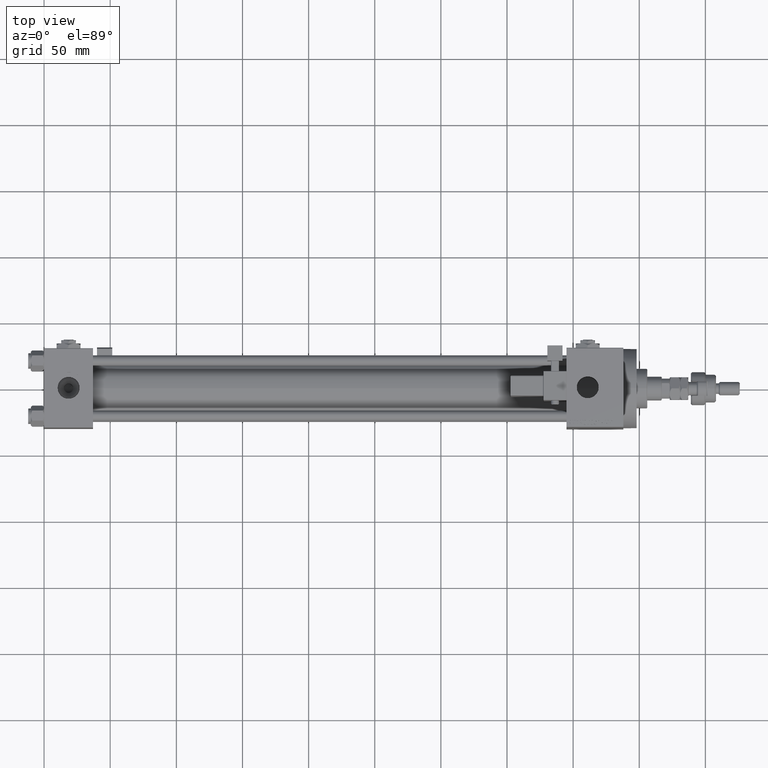
[diagram: clean part render]
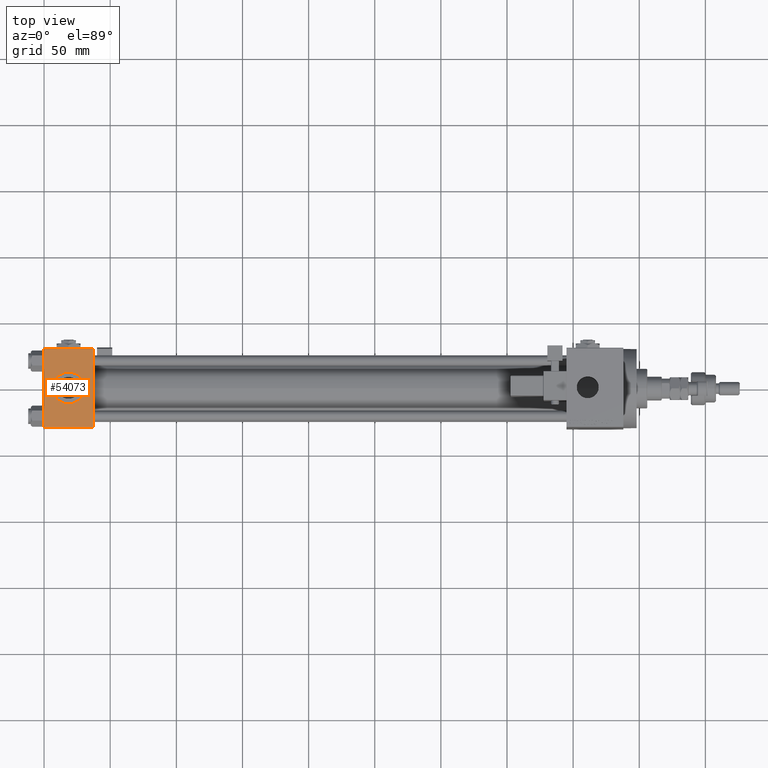
[diagram: same view with one face highlighted and labeled with its STEP entity id]
A machine part, top view. The second image highlights one B-rep face of the part: STEP entity #54073.
In plain terms, the highlighted planar face has unit normal (0, 0, -1).
Its self-contained STEP definition (entity closure, byte-faithful):
#1332 = DIRECTION ( 'NONE',  ( -1.000000000000000000, 0.000000000000000000, 0.000000000000000000 ) ) ;
#2607 = VERTEX_POINT ( 'NONE', #49533 ) ;
#3790 = DIRECTION ( 'NONE',  ( 1.000000000000000000, 0.000000000000000000, 0.000000000000000000 ) ) ;
#4729 = LINE ( 'NONE', #29997, #20088 ) ;
#4854 = ORIENTED_EDGE ( 'NONE', *, *, #6447, .T. ) ;
#6447 = EDGE_CURVE ( 'NONE', #23785, #51501, #8193, .T. ) ;
#7482 = AXIS2_PLACEMENT_3D ( 'NONE', #31144, #10029, #22626 ) ;
#7776 = EDGE_CURVE ( 'NONE', #2607, #23785, #12535, .T. ) ;
#8193 = LINE ( 'NONE', #32082, #16782 ) ;
#8410 = CARTESIAN_POINT ( 'NONE',  ( 37.00000000000000000, 29.49999999999999289, 30.00000000000000000 ) ) ;
#10029 = DIRECTION ( 'NONE',  ( 0.000000000000000000, 0.000000000000000000, 1.000000000000000000 ) ) ;
#10156 = ORIENTED_EDGE ( 'NONE', *, *, #33659, .T. ) ;
#10598 = EDGE_LOOP ( 'NONE', ( #52431, #11692 ) ) ;
#10994 = DIRECTION ( 'NONE',  ( 1.000000000000000000, 0.000000000000000000, 0.000000000000000000 ) ) ;
#11692 = ORIENTED_EDGE ( 'NONE', *, *, #48853, .F. ) ;
#12535 = LINE ( 'NONE', #13328, #41474 ) ;
#13328 = CARTESIAN_POINT ( 'NONE',  ( 0.000000000000000000, 29.99999999999999289, 30.00000000000000000 ) ) ;
#13783 = DIRECTION ( 'NONE',  ( 0.000000000000000000, -1.000000000000000000, -1.156482317317871725E-16 ) ) ;
#16782 = VECTOR ( 'NONE', #3790, 1000.000000000000000 ) ;
#17420 = VECTOR ( 'NONE', #1332, 1000.000000000000000 ) ;
#18230 = EDGE_LOOP ( 'NONE', ( #29566, #4854, #24355, #10156 ) ) ;
#18719 = VERTEX_POINT ( 'NONE', #29630 ) ;
#19620 = CIRCLE ( 'NONE', #7482, 12.00000000000000000 ) ;
#20088 = VECTOR ( 'NONE', #13783, 1000.000000000000000 ) ;
#20292 = VERTEX_POINT ( 'NONE', #8410 ) ;
#20598 = AXIS2_PLACEMENT_3D ( 'NONE', #35958, #48619, #10994 ) ;
#20990 = AXIS2_PLACEMENT_3D ( 'NONE', #50008, #32419, #49208 ) ;
#22626 = DIRECTION ( 'NONE',  ( 1.000000000000000000, 0.000000000000000000, 0.000000000000000000 ) ) ;
#23785 = VERTEX_POINT ( 'NONE', #29183 ) ;
#24355 = ORIENTED_EDGE ( 'NONE', *, *, #53944, .F. ) ;
#29183 = CARTESIAN_POINT ( 'NONE',  ( 0.000000000000000000, -29.49999999999998579, 29.99999999999999289 ) ) ;
#29566 = ORIENTED_EDGE ( 'NONE', *, *, #7776, .T. ) ;
#29630 = CARTESIAN_POINT ( 'NONE',  ( 30.50000000000000000, -3.469446951953614978E-15, 29.99999999999999645 ) ) ;
#29997 = CARTESIAN_POINT ( 'NONE',  ( 37.00000000000000000, 29.99999999999999289, 30.00000000000000000 ) ) ;
#30122 = CARTESIAN_POINT ( 'NONE',  ( 37.00000000000000000, -29.49999999999998579, 29.99999999999999289 ) ) ;
#31144 = CARTESIAN_POINT ( 'NONE',  ( 18.50000000000000000, -3.469446951953614978E-15, 29.99999999999999645 ) ) ;
#32082 = CARTESIAN_POINT ( 'NONE',  ( 37.00000000000000000, -29.50000000000000000, 29.99999999999999289 ) ) ;
#32419 = DIRECTION ( 'NONE',  ( 0.000000000000000000, 1.156482317317871725E-16, -1.000000000000000000 ) ) ;
#33376 = DIRECTION ( 'NONE',  ( 0.000000000000000000, -1.000000000000000000, -1.156482317317871725E-16 ) ) ;
#33659 = EDGE_CURVE ( 'NONE', #20292, #2607, #37903, .T. ) ;
#35958 = CARTESIAN_POINT ( 'NONE',  ( 18.50000000000000000, -3.469446951953614978E-15, 29.99999999999999645 ) ) ;
#37903 = LINE ( 'NONE', #38170, #17420 ) ;
#38170 = CARTESIAN_POINT ( 'NONE',  ( 0.000000000000000000, 29.49999999999999289, 30.00000000000000000 ) ) ;
#40707 = FACE_BOUND ( 'NONE', #10598, .T. ) ;
#40968 = PLANE ( 'NONE',  #20990 ) ;
#41474 = VECTOR ( 'NONE', #33376, 1000.000000000000000 ) ;
#41784 = FACE_OUTER_BOUND ( 'NONE', #18230, .T. ) ;
#44333 = CIRCLE ( 'NONE', #20598, 12.00000000000000000 ) ;
#48373 = EDGE_CURVE ( 'NONE', #18719, #49882, #44333, .T. ) ;
#48619 = DIRECTION ( 'NONE',  ( 0.000000000000000000, 0.000000000000000000, 1.000000000000000000 ) ) ;
#48853 = EDGE_CURVE ( 'NONE', #49882, #18719, #19620, .T. ) ;
#49208 = DIRECTION ( 'NONE',  ( 0.000000000000000000, 1.000000000000000000, 1.156482317317871725E-16 ) ) ;
#49533 = CARTESIAN_POINT ( 'NONE',  ( 0.000000000000000000, 29.49999999999999289, 30.00000000000000000 ) ) ;
#49882 = VERTEX_POINT ( 'NONE', #50133 ) ;
#50008 = CARTESIAN_POINT ( 'NONE',  ( 37.00000000000000000, 29.99999999999999289, 30.00000000000000000 ) ) ;
#50133 = CARTESIAN_POINT ( 'NONE',  ( 6.499999999999997335, -1.999870792976790833E-15, 29.99999999999999645 ) ) ;
#51501 = VERTEX_POINT ( 'NONE', #30122 ) ;
#52431 = ORIENTED_EDGE ( 'NONE', *, *, #48373, .F. ) ;
#53944 = EDGE_CURVE ( 'NONE', #20292, #51501, #4729, .T. ) ;
#54073 = ADVANCED_FACE ( 'NONE', ( #40707, #41784 ), #40968, .F. ) ;